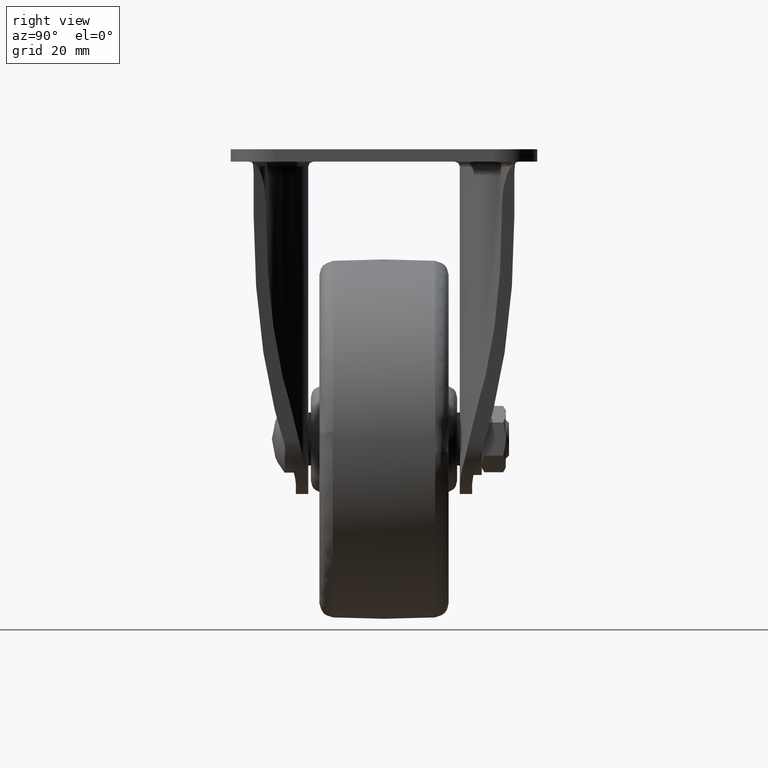
[diagram: clean part render]
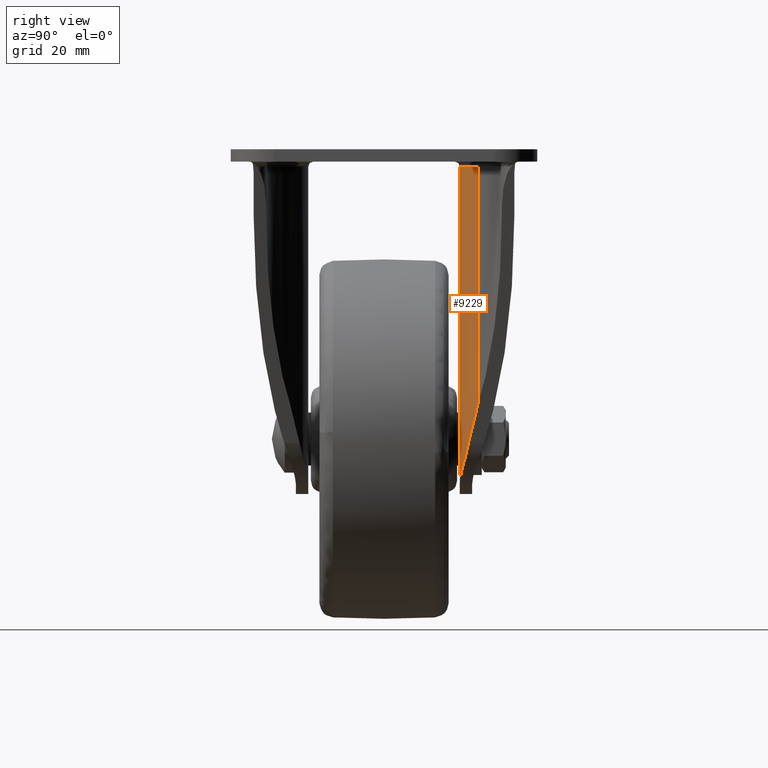
[diagram: same view with one face highlighted and labeled with its STEP entity id]
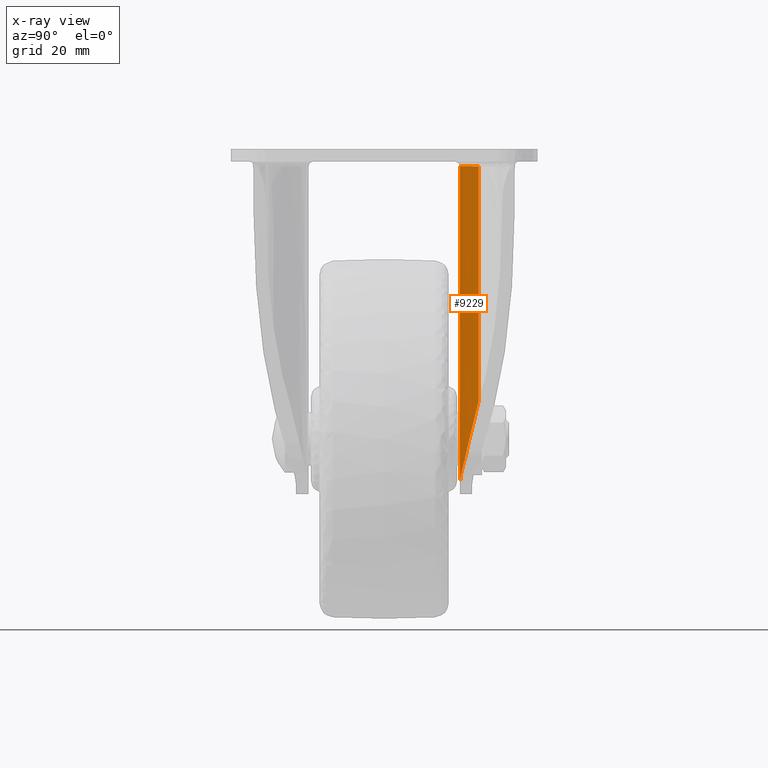
[diagram: x-ray of the same camera — body ghosted, the highlighted face saturated]
A machine part, right view. The second image highlights one B-rep face of the part: STEP entity #9229.
The next image is the same camera in x-ray: the body ghosted, the highlighted face saturated — about 0% of this face is hidden behind the body in this view.
In plain terms, the highlighted face is a freeform B-spline surface patch.
Its self-contained STEP definition (entity closure, byte-faithful):
#7159=CARTESIAN_POINT('',(17.009502742685601,19.770131138357051,-3.600000000000160));
#7160=VERTEX_POINT('',#7159);
#7223=CARTESIAN_POINT('',(7.828796000000181,15.800000000000001,-3.600000000000160));
#7224=VERTEX_POINT('',#7223);
#7238=CARTESIAN_POINT('',(17.009502742685601,19.770131138357051,-3.600000000000160));
#7239=CARTESIAN_POINT('',(13.277576815848184,15.800000000000006,-3.600000000000160));
#7240=CARTESIAN_POINT('',(7.828796000000181,15.800000000000001,-3.600000000000160));
#7248=(BOUNDED_CURVE()B_SPLINE_CURVE(2,(#7238,#7239,#7240),.UNSPECIFIED.,.F.,.U.)CURVE()GEOMETRIC_REPRESENTATION_ITEM()QUASI_UNIFORM_CURVE()RATIONAL_B_SPLINE_CURVE((1.0,0.917853528447033,1.0))REPRESENTATION_ITEM(''));
#7249=EDGE_CURVE('',#7160,#7224,#7248,.T.);
#8215=CARTESIAN_POINT('',(17.009502742685601,19.770131138357051,-52.544118192217802));
#8216=VERTEX_POINT('',#8215);
#8230=CARTESIAN_POINT('',(14.361851000000200,17.625994599640499,-61.328651000000001));
#8231=VERTEX_POINT('',#8230);
#8232=CARTESIAN_POINT('',(17.009502742685601,19.770131138357051,-52.544118192217802));
#8233=CARTESIAN_POINT('',(15.831960261919786,18.517427665360906,-56.451037062277742));
#8234=CARTESIAN_POINT('',(14.361851000000220,17.625994599640560,-61.328651000000008));
#8242=(BOUNDED_CURVE()B_SPLINE_CURVE(2,(#8232,#8233,#8234),.UNSPECIFIED.,.F.,.U.)CURVE()GEOMETRIC_REPRESENTATION_ITEM()QUASI_UNIFORM_CURVE()RATIONAL_B_SPLINE_CURVE((1.0,0.990818755273718,1.0))REPRESENTATION_ITEM(''));
#8243=EDGE_CURVE('',#8216,#8231,#8242,.T.);
#8353=CARTESIAN_POINT('',(7.828796000000181,15.800000000000001,-69.794917146704108));
#8354=VERTEX_POINT('',#8353);
#8355=CARTESIAN_POINT('',(7.828796000000171,15.800000000000001,-69.794917146704080));
#8356=CARTESIAN_POINT('',(8.025568066431138,15.800000000000001,-69.674518700883141));
#8357=CARTESIAN_POINT('',(8.219868918538049,15.804607066224291,-69.549396911641324));
#8358=CARTESIAN_POINT('',(8.507549623028178,15.817929072875890,-69.354552461208172));
#8359=CARTESIAN_POINT('',(8.602814523972413,15.823438752332740,-69.288410227989374));
#8360=CARTESIAN_POINT('',(8.792073381596232,15.836517434330419,-69.153719176751878));
#8361=CARTESIAN_POINT('',(8.886048840277487,15.844088883470510,-69.085177534956571));
#8362=CARTESIAN_POINT('',(9.350138185228017,15.886626413837821,-68.738385052458341));
#8363=CARTESIAN_POINT('',(9.705090173552886,15.935710217145751,-68.446407900904632));
#8364=CARTESIAN_POINT('',(10.384263780547769,16.057043140346970,-67.834024975195078));
#8365=CARTESIAN_POINT('',(10.708478921209130,16.129318612018771,-67.513617530193457));
#8366=CARTESIAN_POINT('',(11.172387192652749,16.250681220766779,-67.011476169066285));
#8367=CARTESIAN_POINT('',(11.323279981370460,16.293298912414340,-66.840500264698633));
#8368=CARTESIAN_POINT('',(11.617597469345410,16.382154396644601,-66.491235186078967));
#8369=CARTESIAN_POINT('',(11.760089600082530,16.428109005196699,-66.314052197982775));
#8370=CARTESIAN_POINT('',(12.173912157257380,16.569322123143351,-65.775025556548343));
#8371=CARTESIAN_POINT('',(12.431693092579749,16.667941839204559,-65.405649983413213));
#8372=CARTESIAN_POINT('',(12.912629055658920,16.868196507251959,-64.646303586379759));
#8373=CARTESIAN_POINT('',(13.135781053446969,16.969847165407590,-64.256334908035484));
#8374=CARTESIAN_POINT('',(13.444783260859120,17.120203542138611,-63.654965800237242));
#8375=CARTESIAN_POINT('',(13.543486990605420,17.169968105876631,-63.451767385893909));
#8376=CARTESIAN_POINT('',(13.732225774448571,17.268026843398829,-63.039645610868789));
#8377=CARTESIAN_POINT('',(13.822356931087340,17.316376919200810,-62.830455766159020));
#8378=CARTESIAN_POINT('',(14.078119925927570,17.457246991896991,-62.197467671500377));
#8379=CARTESIAN_POINT('',(14.229602748056839,17.545802965100350,-61.767431779400198));
#8380=CARTESIAN_POINT('',(14.361851000000120,17.625994599640499,-61.328651000000001));
#8381=B_SPLINE_CURVE_WITH_KNOTS('',3,(#8355,#8356,#8357,#8358,#8359,#8360,#8361,#8362,#8363,#8364,#8365,#8366,#8367,#8368,#8369,#8370,#8371,#8372,#8373,#8374,#8375,#8376,#8377,#8378,#8379,#8380),.UNSPECIFIED.,.F.,.U.,(4,2,2,2,2,2,2,2,2,2,2,2,4),(0.0,0.062500000000004,0.093750000000006,0.125000000000007,0.250000000000008,0.375000000000008,0.437500000000006,0.500000000000005,0.625000000000005,0.750000000000004,0.812500000000002,0.875000000000000,1.0),.UNSPECIFIED.);
#8382=EDGE_CURVE('',#8354,#8231,#8381,.T.);
#9200=CARTESIAN_POINT('',(17.265638081941610,20.050987392481719,-71.449790075371709));
#9201=CARTESIAN_POINT('',(17.265638081941610,20.050987392481719,-1.903755248115871));
#9202=CARTESIAN_POINT('',(13.303538764445690,15.572648775708332,-71.449790075371709));
#9203=CARTESIAN_POINT('',(13.303538764445690,15.572648775708332,-1.903755248115871));
#9204=CARTESIAN_POINT('',(7.328804616336543,15.809924201329761,-71.449790075371695));
#9205=CARTESIAN_POINT('',(7.328804616336543,15.809924201329761,-1.903755248115871));
#9213=(BOUNDED_SURFACE()B_SPLINE_SURFACE(1,2,((#9200,#9202,#9204),(#9201,#9203,#9205)),.UNSPECIFIED.,.F.,.F.,.U.)B_SPLINE_SURFACE_WITH_KNOTS((2,2),(3,3),(0.0,69.546034827255838),(0.0,11.352111738524730),.UNSPECIFIED.)GEOMETRIC_REPRESENTATION_ITEM()RATIONAL_B_SPLINE_SURFACE(((1.0,0.899487798838369,0.991287808146319),(1.0,0.899487798838369,0.991287808146319)))REPRESENTATION_ITEM('')SURFACE());
#9214=CARTESIAN_POINT('',(17.009502742685601,19.770131138357051,-52.544118192217802));
#9215=CARTESIAN_POINT('',(17.009502742685601,19.770131138357051,-3.600000000000160));
#9216=QUASI_UNIFORM_CURVE('',1,(#9214,#9215),.UNSPECIFIED.,.F.,.U.);
#9217=EDGE_CURVE('',#8216,#7160,#9216,.T.);
#9218=ORIENTED_EDGE('',*,*,#9217,.T.);
#9219=ORIENTED_EDGE('',*,*,#7249,.T.);
#9220=CARTESIAN_POINT('',(7.828796000000181,15.800000000000001,-69.794917146704108));
#9221=CARTESIAN_POINT('',(7.828796000000181,15.800000000000001,-3.600000000000160));
#9222=QUASI_UNIFORM_CURVE('',1,(#9220,#9221),.UNSPECIFIED.,.F.,.U.);
#9223=EDGE_CURVE('',#8354,#7224,#9222,.T.);
#9224=ORIENTED_EDGE('',*,*,#9223,.F.);
#9225=ORIENTED_EDGE('',*,*,#8382,.T.);
#9226=ORIENTED_EDGE('',*,*,#8243,.F.);
#9227=EDGE_LOOP('',(#9218,#9219,#9224,#9225,#9226));
#9228=FACE_OUTER_BOUND('',#9227,.T.);
#9229=ADVANCED_FACE('',(#9228),#9213,.T.);